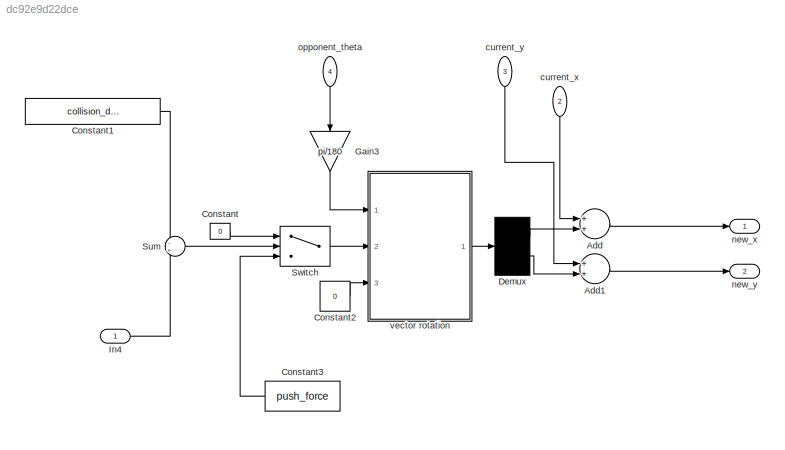
MODEL slx_dc92e9d22dce
KIND model
CONFIG AbsTol = auto
CONFIG EnableMultiTasking = off
CONFIG FixedStep = 0.01
CONFIG MaxStep = .01
CONFIG MinStep = auto
CONFIG RelTol = 1e-3
CONFIG SampleTimeConstraint = Unconstrained
CONFIG Solver = VariableStepAuto
CONFIG SolverName = VariableStepAuto
CONFIG StartTime = 0.0
CONFIG StopTime = 120
BLOCK [Sum] Add
  InputSameDT = off
  OutDataTypeStr = Inherit: Inherit via internal rule
  Ports = [2, 1]
  SaturateOnIntegerOverflow = off
BLOCK [Sum] Add1
  InputSameDT = off
  OutDataTypeStr = Inherit: Inherit via internal rule
  Ports = [2, 1]
  SaturateOnIntegerOverflow = off
BLOCK [Constant] Constant
  Value = 0
BLOCK [Constant] Constant1
  Value = collision_detection_distance
BLOCK [Constant] Constant2
  Value = 0
BLOCK [Constant] Constant3
  Value = push_force
BLOCK [Demux] Demux
  Outputs = 2
  Ports = [1, 2]
BLOCK [Gain] Gain3
  Gain = pi/180
  OutDataTypeStr = Inherit: Inherit via internal rule
  ParamDataTypeStr = Inherit: Inherit via internal rule
  SaturateOnIntegerOverflow = off
BLOCK [Inport] In4
  IconDisplay = Port number
  OutDataTypeStr = double
  PortDimensions = 1
  SampleTime = 0
  SamplingMode = Sample based
  SignalType = real
BLOCK [Sum] Sum
  IconShape = round
  InputSameDT = off
  Inputs = -+
  OutDataTypeStr = Inherit: Inherit via internal rule
  Ports = [2, 1]
  SaturateOnIntegerOverflow = off
BLOCK [Switch] Switch
  Criteria = u2 > Threshold
  InputSameDT = off
  SaturateOnIntegerOverflow = off
BLOCK [Inport] current_x
  IconDisplay = Port number
  OutDataTypeStr = double
  Port = 2
  PortDimensions = 1
  SampleTime = 0
  SamplingMode = Sample based
  SignalType = real
BLOCK [Inport] current_y
  IconDisplay = Port number
  OutDataTypeStr = double
  Port = 3
  PortDimensions = 1
  SampleTime = 0
  SamplingMode = Sample based
  SignalType = real
BLOCK [Outport] new_x
  IconDisplay = Port number
  OutDataTypeStr = double
  PortDimensions = 1
  SampleTime = 0
  SamplingMode = Sample based
  SignalType = real
BLOCK [Outport] new_y
  IconDisplay = Port number
  OutDataTypeStr = double
  Port = 2
  PortDimensions = 1
  SampleTime = 0
  SamplingMode = Sample based
  SignalType = real
BLOCK [Inport] opponent_theta
  IconDisplay = Port number
  OutDataTypeStr = double
  Port = 4
  PortDimensions = 1
  SampleTime = 0
  SamplingMode = Sample based
  SignalType = real
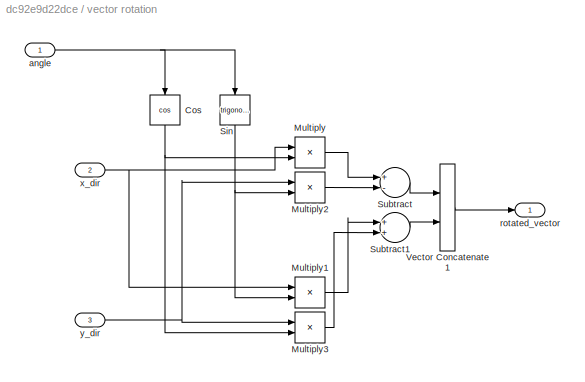
BLOCK [SubSystem] vector rotation 
  Ports = [3, 1]
  RequestExecContextInheritance = off
BLOCK [Trigonometry] vector rotation /Cos
  Operator = cos
  Ports = [1, 1]
BLOCK [Product] vector rotation /Multiply
  InputSameDT = off
  OutDataTypeStr = Inherit: Inherit via internal rule
  Ports = [2, 1]
  RndMeth = Floor
  SaturateOnIntegerOverflow = off
BLOCK [Product] vector rotation /Multiply1
  InputSameDT = off
  OutDataTypeStr = Inherit: Inherit via internal rule
  Ports = [2, 1]
  RndMeth = Floor
  SaturateOnIntegerOverflow = off
BLOCK [Product] vector rotation /Multiply2
  InputSameDT = off
  OutDataTypeStr = Inherit: Inherit via internal rule
  Ports = [2, 1]
  RndMeth = Floor
  SaturateOnIntegerOverflow = off
BLOCK [Product] vector rotation /Multiply3
  InputSameDT = off
  OutDataTypeStr = Inherit: Inherit via internal rule
  Ports = [2, 1]
  RndMeth = Floor
  SaturateOnIntegerOverflow = off
BLOCK [Trigonometry] vector rotation /Sin
  Ports = [1, 1]
BLOCK [Sum] vector rotation /Subtract
  InputSameDT = off
  Inputs = +-
  OutDataTypeStr = Inherit: Inherit via internal rule
  Ports = [2, 1]
  SaturateOnIntegerOverflow = off
BLOCK [Sum] vector rotation /Subtract1
  InputSameDT = off
  OutDataTypeStr = Inherit: Inherit via internal rule
  Ports = [2, 1]
  SaturateOnIntegerOverflow = off
BLOCK [Concatenate] vector rotation /Vector Concatenate1
  Ports = [2, 1]
BLOCK [Inport] vector rotation /angle
  IconDisplay = Port number
BLOCK [Outport] vector rotation /rotated_vector 
  IconDisplay = Port number
BLOCK [Inport] vector rotation /x_dir
  IconDisplay = Port number
  Port = 2
BLOCK [Inport] vector rotation /y_dir
  IconDisplay = Port number
  Port = 3
LINE Add1:1 -> new_y:1
LINE Add:1 -> new_x:1
LINE Constant1:1 -> Sum:1
LINE Constant2:1 -> vector rotation :3
LINE Constant3:1 -> Switch:3
LINE Constant:1 -> Switch:1
LINE Demux:1 -> Add:2
LINE Demux:2 -> Add1:2
LINE Gain3:1 -> vector rotation :1
LINE In4:1 -> Sum:2
LINE Sum:1 -> Switch:2
LINE Switch:1 -> vector rotation :2
LINE current_x:1 -> Add:1
LINE current_y:1 -> Add1:1
LINE opponent_theta:1 -> Gain3:1
NET vector rotation /Cos:1 -> vector rotation /Multiply3:2, vector rotation /Multiply:2
LINE vector rotation /Multiply1:1 -> vector rotation /Subtract1:1
LINE vector rotation /Multiply2:1 -> vector rotation /Subtract:2
LINE vector rotation /Multiply3:1 -> vector rotation /Subtract1:2
LINE vector rotation /Multiply:1 -> vector rotation /Subtract:1
NET vector rotation /Sin:1 -> vector rotation /Multiply1:2, vector rotation /Multiply2:2
LINE vector rotation /Subtract1:1 -> vector rotation /Vector Concatenate1:2
LINE vector rotation /Subtract:1 -> vector rotation /Vector Concatenate1:1
LINE vector rotation /Vector Concatenate1:1 -> vector rotation /rotated_vector :1
NET vector rotation /angle:1 -> vector rotation /Cos:1, vector rotation /Sin:1
NET vector rotation /x_dir:1 -> vector rotation /Multiply1:1, vector rotation /Multiply:1
NET vector rotation /y_dir:1 -> vector rotation /Multiply2:1, vector rotation /Multiply3:1
LINE vector rotation :1 -> Demux:1
note: NET lines group one-source signal fan-out (src -> all destinations, sorted); 1:1 wires keep LINE
